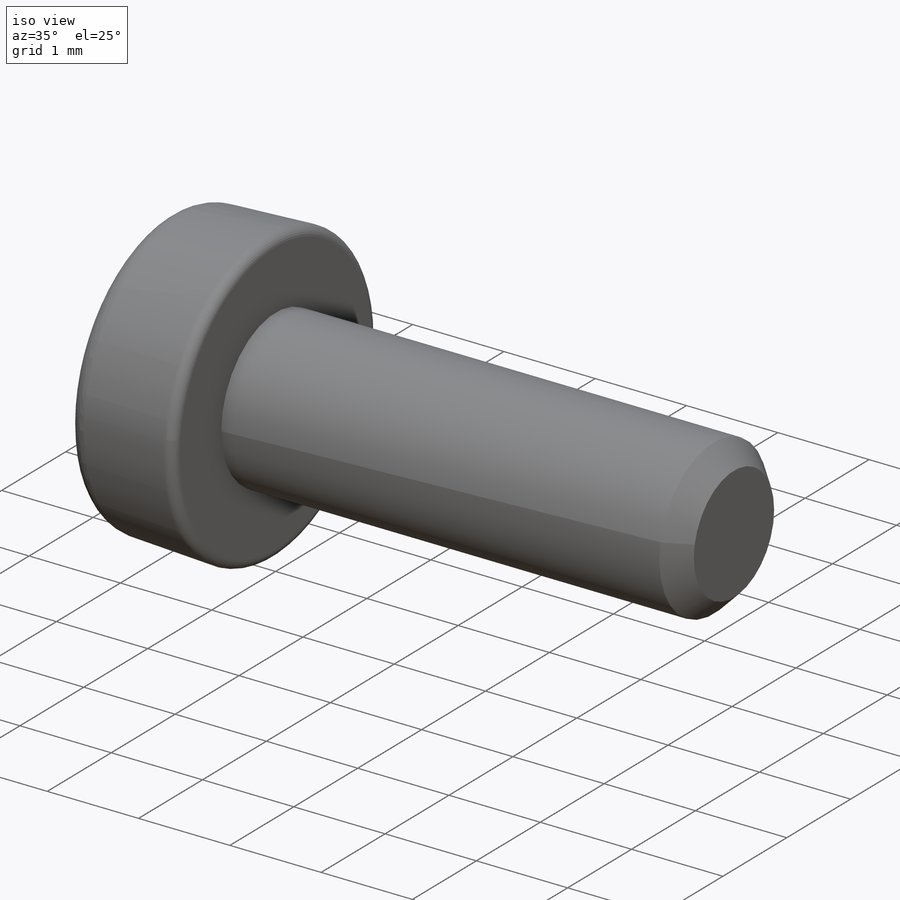
[diagram: iso view]
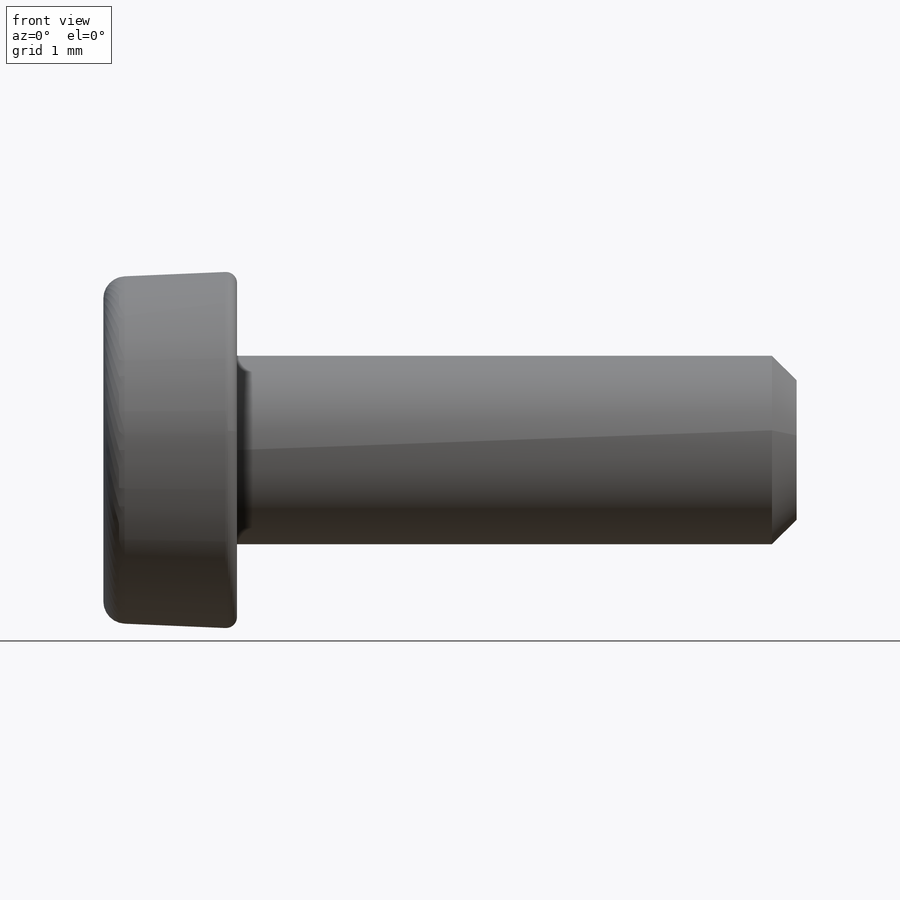
[diagram: front view]
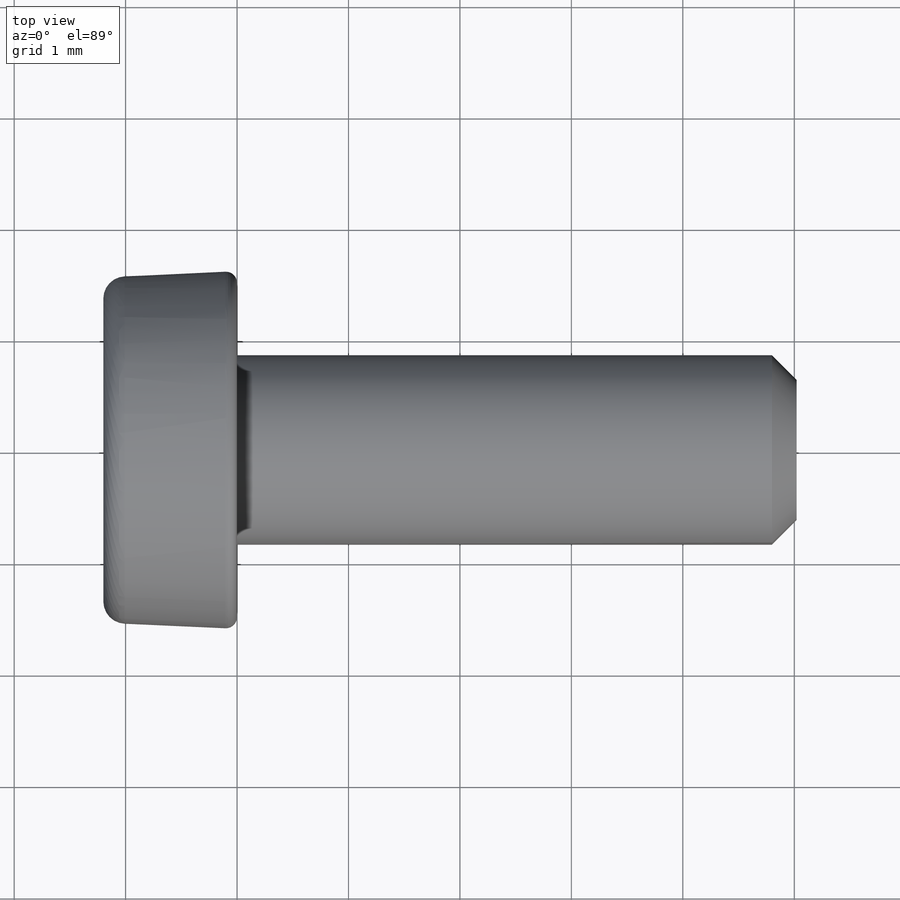
[diagram: top view]
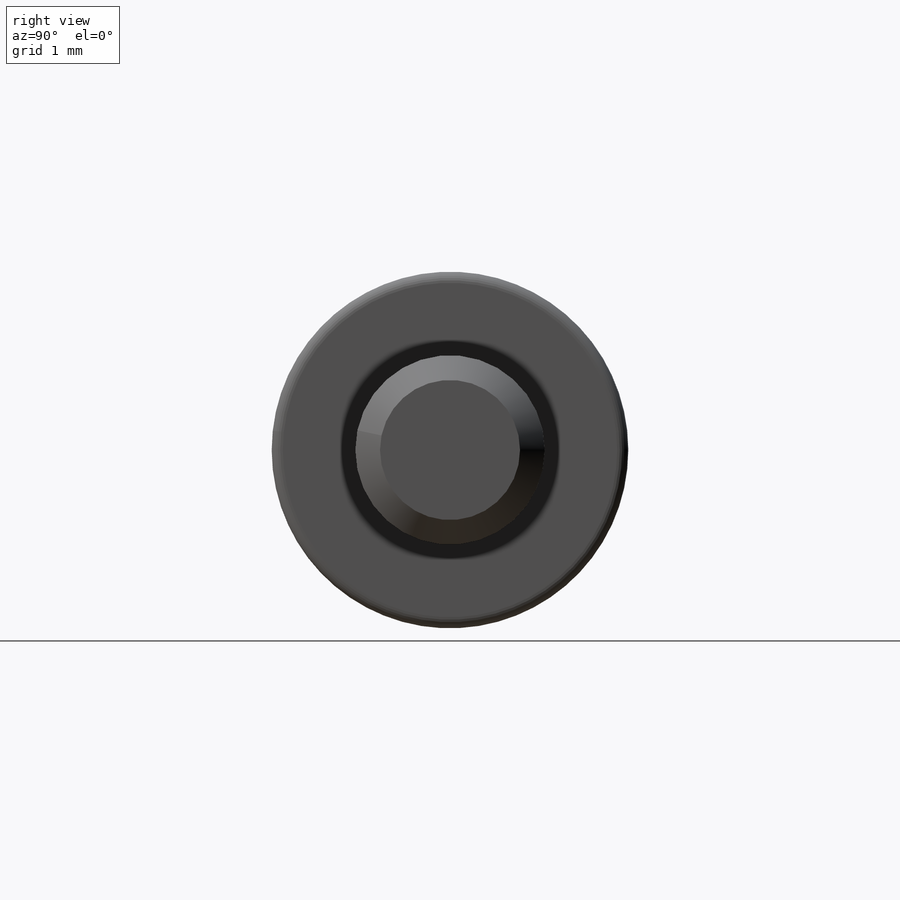
[diagram: right view]
SOLIDWORKS PART (.sldprt)
format: sldprt  version: not decoded by parser v0  size: 229,888 bytes
history: native  units: mm
features: plane x3, sketch x2, material x1, revolve x1, cut_extrude x1, pattern_circular x1, chamfer x1 (+8 scaffold rows collapsed)
feature tree (18):
  scaffold x8  (default folders/planes/origin — collapsed)
  material  "Acier allié inoxydable"
  plane  "Plan de face"
  plane  "Plan de dessus"
  plane  "Plan de droite"
  sketch  "Esquisse1"  dims[c1.D8=0.2mm c1.D9=0.1mm c1.D1=0.85mm c1.D2=3.8mm c1.D3=4.8mm c1.D4=1.3mm c1.D5=1.2mm c1.D6=~0.073501mm c2.D6=135.0deg c2.D7=1.4mm c2.D2=3.8mm c2.D4=1.6mm c3.D2=~1.359431mm]
  revolve  "Révolution1"  Angle=360deg
  sketch  "Esquisse2"  dims[D1=0.3mm D2=0.8mm]
  cut_extrude  "Extrusion1"  Depth=0.3mm
  pattern_circular  "Répétition circulaire1"  Count=4 Angle=360deg
  chamfer  "Chanfrein1"  Distance=0.2mm Angle=45deg
decode coverage: 6 of 6 modeling features carry decoded parameters
note: ~ marks probable driven/reference dimensions
note: suppression state not decoded; provenance and decode notes live in map.json
